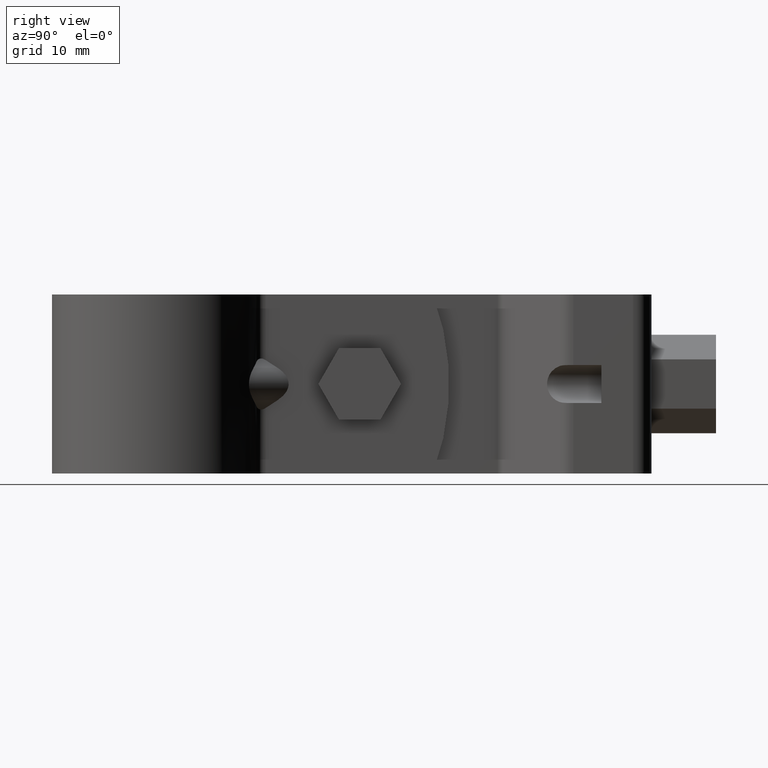
[diagram: clean part render]
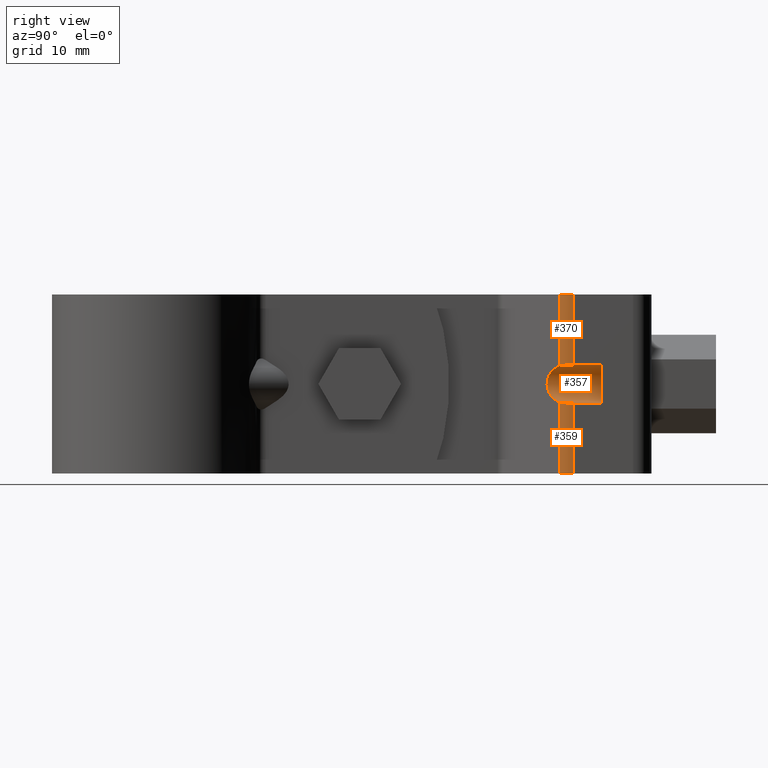
[diagram: same view with one multi-face feature highlighted, each face labeled with its STEP entity id]
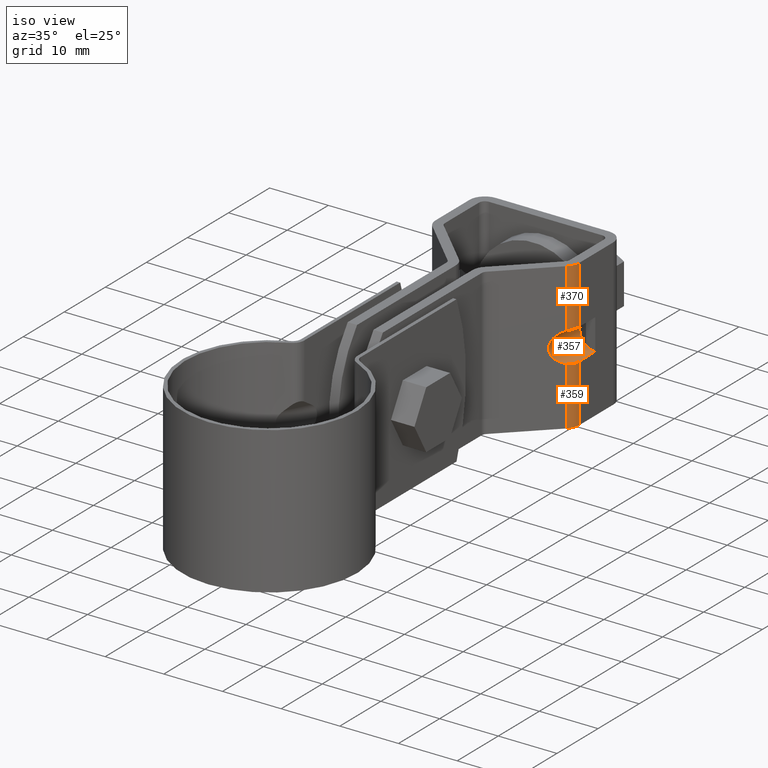
[diagram: same view with one multi-face feature highlighted, each face labeled with its STEP entity id]
A machine part, right view. The highlighted faces form ONE feature: a constant-radius fillet chain: 3 tangent blend faces with common blend radius 2.61667 mm. The faces share edges in the B-rep.
A second angle (iso view) of the same feature is appended — it is thin or edge-on in the first view.
Their STEP definitions:
[1] entity #370 (Cylinder):
#370 = ADVANCED_FACE( '', ( #617 ), #618, .T. );
#617 = FACE_OUTER_BOUND( '', #889, .T. );
#618 = CYLINDRICAL_SURFACE( '', #890, 2.59999999999999 );
#889 = EDGE_LOOP( '', ( #1798, #1799, #1800, #1801 ) );
#890 = AXIS2_PLACEMENT_3D( '', #1802, #1803, #1804 );
#1798 = ORIENTED_EDGE( '', *, *, #2224, .F. );
#1799 = ORIENTED_EDGE( '', *, *, #2196, .F. );
#1800 = ORIENTED_EDGE( '', *, *, #2223, .T. );
#1801 = ORIENTED_EDGE( '', *, *, #2216, .F. );
#1802 = CARTESIAN_POINT( '', ( 9.65000000333414, 57.9087729559785, -12.4999987010129 ) );
#1803 = DIRECTION( '', ( -1.87698704392248E-011, 9.98350074832307E-009, -1.00000000000000 ) );
#1804 = DIRECTION( '', ( 1.39877502405819E-011, 1.00000000000000, 9.98350074832280E-009 ) );
#2196 = EDGE_CURVE( '', #2698, #2688, #2700, .T. );
#2216 = EDGE_CURVE( '', #2725, #2727, #2728, .T. );
#2223 = EDGE_CURVE( '', #2698, #2727, #2738, .T. );
#2224 = EDGE_CURVE( '', #2688, #2725, #2739, .T. );
#2688 = VERTEX_POINT( '', #3521 );
#2698 = VERTEX_POINT( '', #3539 );
#2700 = B_SPLINE_CURVE_WITH_KNOTS( '', 3, ( #3542, #3543, #3544, #3545, #3546, #3547, #3548, #3549, #3550, #3551 ), .UNSPECIFIED., .F., .F., ( 4, 2, 2, 2, 4 ), ( 0.000000000000000, 0.000517346174284564, 0.00103469234856913, 0.00155203852285369, 0.00206938469713826 ), .UNSPECIFIED. );
#2725 = VERTEX_POINT( '', #3590 );
#2727 = VERTEX_POINT( '', #3593 );
#2728 = CIRCLE( '', #3594, 2.59999999999999 );
#2738 = LINE( '', #3607, #3608 );
#2739 = LINE( '', #3609, #3610 );
#3521 = CARTESIAN_POINT( '', ( 11.4656419759695, 56.0477396981403, 2.53126232667160 ) );
#3539 = CARTESIAN_POINT( '', ( 12.2500000036185, 57.9087728046920, 2.65000129893823 ) );
#3542 = CARTESIAN_POINT( '', ( 12.2500000036185, 57.9087728046920, 2.65000129893823 ) );
#3543 = CARTESIAN_POINT( '', ( 12.2500000036160, 57.7338827404437, 2.65000129719222 ) );
#3544 = CARTESIAN_POINT( '', ( 12.2325330390219, 57.5619403325368, 2.65016499148074 ) );
#3545 = CARTESIAN_POINT( '', ( 12.1640563560564, 57.2237251425430, 2.64882865527841 ) );
#3546 = CARTESIAN_POINT( '', ( 12.1121297153095, 57.0555942942772, 2.64727724328782 ) );
#3547 = CARTESIAN_POINT( '', ( 11.9772119396867, 56.7365608391499, 2.63679192344897 ) );
#3548 = CARTESIAN_POINT( '', ( 11.8947254740606, 56.5855496198882, 2.62792906921723 ) );
#3549 = CARTESIAN_POINT( '', ( 11.7003962072441, 56.3007966104087, 2.59425649269568 ) );
#3550 = CARTESIAN_POINT( '', ( 11.5880224334507, 56.1671352605108, 2.56918417491367 ) );
#3551 = CARTESIAN_POINT( '', ( 11.4656419759695, 56.0477396981403, 2.53126232667160 ) );
#3590 = CARTESIAN_POINT( '', ( 11.4656419761567, 56.0477395986174, 12.5000012803734 ) );
#3593 = CARTESIAN_POINT( '', ( 12.2500000038034, 57.9087727063546, 12.5000012989383 ) );
#3594 = AXIS2_PLACEMENT_3D( '', #4145, #4146, #4147 );
#3607 = CARTESIAN_POINT( '', ( 12.2500000033341, 57.9087729559421, -12.4999987010617 ) );
#3608 = VECTOR( '', #4160, 1000.00000000000 );
#3609 = CARTESIAN_POINT( '', ( 11.4656419756874, 56.0477398482050, -12.4999987196266 ) );
#3610 = VECTOR( '', #4161, 1000.00000000000 );
#4145 = CARTESIAN_POINT( '', ( 9.65000000380339, 57.9087727063909, 12.5000012989871 ) );
#4146 = DIRECTION( '', ( 1.87698704392248E-011, -9.98350074832307E-009, 1.00000000000000 ) );
#4147 = DIRECTION( '', ( 0.698323835520490, -0.715781964528272, -7.15911722642150E-009 ) );
#4160 = DIRECTION( '', ( 1.87698704392248E-011, -9.98350074832307E-009, 1.00000000000000 ) );
#4161 = DIRECTION( '', ( 1.87698704392248E-011, -9.98350074832307E-009, 1.00000000000000 ) );
[2] entity #357 (Cylinder):
#357 = ADVANCED_FACE( '', ( #588 ), #589, .F. );
#588 = FACE_OUTER_BOUND( '', #860, .T. );
#589 = CYLINDRICAL_SURFACE( '', #861, 2.64999999999997 );
#860 = EDGE_LOOP( '', ( #1667, #1668, #1669, #1670, #1671, #1672, #1673, #1674 ) );
#861 = AXIS2_PLACEMENT_3D( '', #1675, #1676, #1677 );
#1667 = ORIENTED_EDGE( '', *, *, #2190, .T. );
#1668 = ORIENTED_EDGE( '', *, *, #2191, .T. );
#1669 = ORIENTED_EDGE( '', *, *, #2192, .T. );
#1670 = ORIENTED_EDGE( '', *, *, #2193, .F. );
#1671 = ORIENTED_EDGE( '', *, *, #2188, .F. );
#1672 = ORIENTED_EDGE( '', *, *, #2194, .F. );
#1673 = ORIENTED_EDGE( '', *, *, #2195, .F. );
#1674 = ORIENTED_EDGE( '', *, *, #2196, .T. );
#1675 = CARTESIAN_POINT( '', ( 12.2500000034834, 51.8129670320339, 1.23808079066645E-006 ) );
#1676 = DIRECTION( '', ( -1.39877502405819E-011, -1.00000000000000, -9.98350074832280E-009 ) );
#1677 = DIRECTION( '', ( -1.87909263230408E-011, 9.98350074832306E-009, -1.00000000000000 ) );
#2188 = EDGE_CURVE( '', #2683, #2685, #2686, .T. );
#2190 = EDGE_CURVE( '', #2688, #2689, #2690, .T. );
#2191 = EDGE_CURVE( '', #2689, #2691, #2692, .T. );
#2192 = EDGE_CURVE( '', #2691, #2693, #2694, .T. );
#2193 = EDGE_CURVE( '', #2685, #2693, #2695, .T. );
#2194 = EDGE_CURVE( '', #2696, #2683, #2697, .T. );
#2195 = EDGE_CURVE( '', #2698, #2696, #2699, .T. );
#2196 = EDGE_CURVE( '', #2698, #2688, #2700, .T. );
#2683 = VERTEX_POINT( '', #3514 );
#2685 = VERTEX_POINT( '', #3517 );
#2686 = CIRCLE( '', #3518, 2.64999999999997 );
#2688 = VERTEX_POINT( '', #3521 );
#2689 = VERTEX_POINT( '', #3522 );
#2690 = ELLIPSE( '', #3523, 3.70224472166266, 2.64999999999997 );
#2691 = VERTEX_POINT( '', #3524 );
#2692 = B_SPLINE_CURVE_WITH_KNOTS( '', 3, ( #3525, #3526, #3527, #3528, #3529, #3530, #3531, #3532 ), .UNSPECIFIED., .F., .F., ( 4, 2, 2, 4 ), ( 1.73472347597684E-018, 0.000516787748161299, 0.00103357549632260, 0.00206715099264519 ), .UNSPECIFIED. );
#2693 = VERTEX_POINT( '', #3533 );
#2694 = LINE( '', #3534, #3535 );
#2695 = CIRCLE( '', #3536, 2.64999999999997 );
#2696 = VERTEX_POINT( '', #3537 );
#2697 = CIRCLE( '', #3538, 2.64999999999997 );
#2698 = VERTEX_POINT( '', #3539 );
#2699 = LINE( '', #3540, #3541 );
#2700 = B_SPLINE_CURVE_WITH_KNOTS( '', 3, ( #3542, #3543, #3544, #3545, #3546, #3547, #3548, #3549, #3550, #3551 ), .UNSPECIFIED., .F., .F., ( 4, 2, 2, 2, 4 ), ( 0.000000000000000, 0.000517346174284564, 0.00103469234856913, 0.00155203852285369, 0.00206938469713826 ), .UNSPECIFIED. );
#3514 = CARTESIAN_POINT( '', ( 10.6500000036630, 61.8129670109665, 2.11246435537359 ) );
#3517 = CARTESIAN_POINT( '', ( 10.6500000035837, 61.8129670531461, -2.11246167948194 ) );
#3518 = AXIS2_PLACEMENT_3D( '', #4103, #4104, #4105 );
#3521 = CARTESIAN_POINT( '', ( 11.4656419759695, 56.0477396981403, 2.53126232667160 ) );
#3522 = CARTESIAN_POINT( '', ( 11.4656419758745, 56.0477397486820, -2.53125976592487 ) );
#3523 = AXIS2_PLACEMENT_3D( '', #4107, #4108, #4109 );
#3524 = CARTESIAN_POINT( '', ( 12.2500000035190, 57.9087728576045, -2.64999870106171 ) );
#3525 = CARTESIAN_POINT( '', ( 11.4656419758745, 56.0477397486820, -2.53125976592489 ) );
#3526 = CARTESIAN_POINT( '', ( 11.5880007629272, 56.1671141699305, -2.56917489680536 ) );
#3527 = CARTESIAN_POINT( '', ( 11.6979909760790, 56.2978131355435, -2.59373738694429 ) );
#3528 = CARTESIAN_POINT( '', ( 11.8919853035444, 56.5810077567437, -2.62754885241160 ) );
#3529 = CARTESIAN_POINT( '', ( 11.9765770492487, 56.7353329553671, -2.63672398065459 ) );
#3530 = CARTESIAN_POINT( '', ( 12.1789956060211, 57.2131658873619, -2.65250306735291 ) );
#3531 = CARTESIAN_POINT( '', ( 12.2500000035141, 57.5592310155573, -2.64999870455136 ) );
#3532 = CARTESIAN_POINT( '', ( 12.2500000035190, 57.9087728576045, -2.64999870106171 ) );
#3533 = CARTESIAN_POINT( '', ( 12.2500000035736, 61.8129670584902, -2.64999866208418 ) );
#3534 = CARTESIAN_POINT( '', ( 12.2500000034338, 51.8129670584902, -2.64999876191918 ) );
#3535 = VECTOR( '', #4110, 1000.00000000000 );
#3536 = AXIS2_PLACEMENT_3D( '', #4111, #4112, #4113 );
#3537 = CARTESIAN_POINT( '', ( 12.2500000036731, 61.8129670055776, 2.65000133791576 ) );
#3538 = AXIS2_PLACEMENT_3D( '', #4114, #4115, #4116 );
#3539 = CARTESIAN_POINT( '', ( 12.2500000036185, 57.9087728046920, 2.65000129893823 ) );
#3540 = CARTESIAN_POINT( '', ( 12.2500000035332, 51.8129670055777, 2.65000123808076 ) );
#3541 = VECTOR( '', #4117, 1000.00000000000 );
#3542 = CARTESIAN_POINT( '', ( 12.2500000036185, 57.9087728046920, 2.65000129893823 ) );
#3543 = CARTESIAN_POINT( '', ( 12.2500000036160, 57.7338827404437, 2.65000129719222 ) );
#3544 = CARTESIAN_POINT( '', ( 12.2325330390219, 57.5619403325368, 2.65016499148074 ) );
#3545 = CARTESIAN_POINT( '', ( 12.1640563560564, 57.2237251425430, 2.64882865527841 ) );
#3546 = CARTESIAN_POINT( '', ( 12.1121297153095, 57.0555942942772, 2.64727724328782 ) );
#3547 = CARTESIAN_POINT( '', ( 11.9772119396867, 56.7365608391499, 2.63679192344897 ) );
#3548 = CARTESIAN_POINT( '', ( 11.8947254740606, 56.5855496198882, 2.62792906921723 ) );
#3549 = CARTESIAN_POINT( '', ( 11.7003962072441, 56.3007966104087, 2.59425649269568 ) );
#3550 = CARTESIAN_POINT( '', ( 11.5880224334507, 56.1671352605108, 2.56918417491367 ) );
#3551 = CARTESIAN_POINT( '', ( 11.4656419759695, 56.0477396981403, 2.53126232667160 ) );
#4103 = CARTESIAN_POINT( '', ( 12.2500000036233, 61.8129670320339, 1.33791579204345E-006 ) );
#4104 = DIRECTION( '', ( -1.39877502405819E-011, -1.00000000000000, -9.98350074832280E-009 ) );
#4105 = DIRECTION( '', ( -1.87693241061702E-011, 9.98350074832307E-009, -1.00000000000000 ) );
#4107 = CARTESIAN_POINT( '', ( 12.2500000035534, 56.8129670320341, 1.28799829135495E-006 ) );
#4108 = DIRECTION( '', ( 0.698323835520487, -0.715781964528275, -7.15911726152397E-009 ) );
#4109 = DIRECTION( '', ( 0.715781964528275, 0.698323835520487, 6.95828136377368E-009 ) );
#4110 = DIRECTION( '', ( 1.39877502405819E-011, 1.00000000000000, 9.98350074832280E-009 ) );
#4111 = CARTESIAN_POINT( '', ( 12.2500000036233, 61.8129670320339, 1.33791579204345E-006 ) );
#4112 = DIRECTION( '', ( -1.39877502405819E-011, -1.00000000000000, -9.98350074832280E-009 ) );
#4113 = DIRECTION( '', ( -1.87693241061702E-011, 9.98350074832307E-009, -1.00000000000000 ) );
#4114 = CARTESIAN_POINT( '', ( 12.2500000036233, 61.8129670320339, 1.33791579204345E-006 ) );
#4115 = DIRECTION( '', ( -1.39877502405819E-011, -1.00000000000000, -9.98350074832280E-009 ) );
#4116 = DIRECTION( '', ( -1.87693241061702E-011, 9.98350074832307E-009, -1.00000000000000 ) );
#4117 = DIRECTION( '', ( 1.39877502405819E-011, 1.00000000000000, 9.98350074832280E-009 ) );
[3] entity #359 (Cylinder):
#359 = ADVANCED_FACE( '', ( #592 ), #593, .T. );
#592 = FACE_OUTER_BOUND( '', #864, .T. );
#593 = CYLINDRICAL_SURFACE( '', #865, 2.59999999999999 );
#864 = EDGE_LOOP( '', ( #1685, #1686, #1687, #1688 ) );
#865 = AXIS2_PLACEMENT_3D( '', #1689, #1690, #1691 );
#1685 = ORIENTED_EDGE( '', *, *, #2199, .T. );
#1686 = ORIENTED_EDGE( '', *, *, #2191, .F. );
#1687 = ORIENTED_EDGE( '', *, *, #2200, .F. );
#1688 = ORIENTED_EDGE( '', *, *, #2118, .T. );
#1689 = CARTESIAN_POINT( '', ( 9.65000000333414, 57.9087729559785, -12.4999987010129 ) );
#1690 = DIRECTION( '', ( -1.87698704392248E-011, 9.98350074832307E-009, -1.00000000000000 ) );
#1691 = DIRECTION( '', ( 1.39877502405819E-011, 1.00000000000000, 9.98350074832280E-009 ) );
#2118 = EDGE_CURVE( '', #2568, #2566, #2569, .T. );
#2191 = EDGE_CURVE( '', #2689, #2691, #2692, .T. );
#2199 = EDGE_CURVE( '', #2566, #2691, #2703, .T. );
#2200 = EDGE_CURVE( '', #2568, #2689, #2704, .T. );
#2566 = VERTEX_POINT( '', #3320 );
#2568 = VERTEX_POINT( '', #3323 );
#2569 = CIRCLE( '', #3324, 2.59999999999999 );
#2689 = VERTEX_POINT( '', #3522 );
#2691 = VERTEX_POINT( '', #3524 );
#2692 = B_SPLINE_CURVE_WITH_KNOTS( '', 3, ( #3525, #3526, #3527, #3528, #3529, #3530, #3531, #3532 ), .UNSPECIFIED., .F., .F., ( 4, 2, 2, 4 ), ( 1.73472347597684E-018, 0.000516787748161299, 0.00103357549632260, 0.00206715099264519 ), .UNSPECIFIED. );
#2703 = LINE( '', #3556, #3557 );
#2704 = LINE( '', #3558, #3559 );
#3320 = CARTESIAN_POINT( '', ( 12.2500000033341, 57.9087729559421, -12.4999987010617 ) );
#3323 = CARTESIAN_POINT( '', ( 11.4656419756874, 56.0477398482050, -12.4999987196266 ) );
#3324 = AXIS2_PLACEMENT_3D( '', #3993, #3994, #3995 );
#3522 = CARTESIAN_POINT( '', ( 11.4656419758745, 56.0477397486820, -2.53125976592487 ) );
#3524 = CARTESIAN_POINT( '', ( 12.2500000035190, 57.9087728576045, -2.64999870106171 ) );
#3525 = CARTESIAN_POINT( '', ( 11.4656419758745, 56.0477397486820, -2.53125976592489 ) );
#3526 = CARTESIAN_POINT( '', ( 11.5880007629272, 56.1671141699305, -2.56917489680536 ) );
#3527 = CARTESIAN_POINT( '', ( 11.6979909760790, 56.2978131355435, -2.59373738694429 ) );
#3528 = CARTESIAN_POINT( '', ( 11.8919853035444, 56.5810077567437, -2.62754885241160 ) );
#3529 = CARTESIAN_POINT( '', ( 11.9765770492487, 56.7353329553671, -2.63672398065459 ) );
#3530 = CARTESIAN_POINT( '', ( 12.1789956060211, 57.2131658873619, -2.65250306735291 ) );
#3531 = CARTESIAN_POINT( '', ( 12.2500000035141, 57.5592310155573, -2.64999870455136 ) );
#3532 = CARTESIAN_POINT( '', ( 12.2500000035190, 57.9087728576045, -2.64999870106171 ) );
#3556 = CARTESIAN_POINT( '', ( 12.2500000033341, 57.9087729559421, -12.4999987010617 ) );
#3557 = VECTOR( '', #4120, 1000.00000000000 );
#3558 = CARTESIAN_POINT( '', ( 11.4656419756874, 56.0477398482050, -12.4999987196266 ) );
#3559 = VECTOR( '', #4121, 1000.00000000000 );
#3993 = CARTESIAN_POINT( '', ( 9.65000000333414, 57.9087729559785, -12.4999987010129 ) );
#3994 = DIRECTION( '', ( 1.87698704392248E-011, -9.98350074832307E-009, 1.00000000000000 ) );
#3995 = DIRECTION( '', ( 0.698323835520490, -0.715781964528272, -7.15911722642150E-009 ) );
#4120 = DIRECTION( '', ( 1.87698704392248E-011, -9.98350074832307E-009, 1.00000000000000 ) );
#4121 = DIRECTION( '', ( 1.87698704392248E-011, -9.98350074832307E-009, 1.00000000000000 ) );